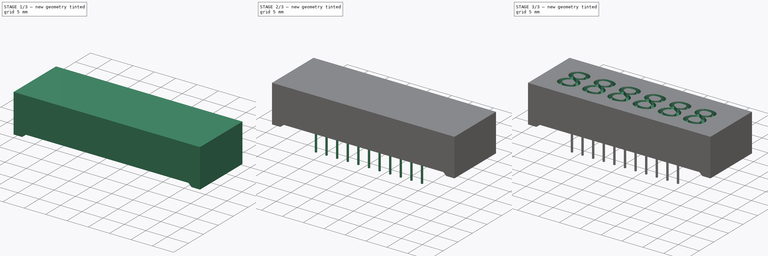
[diagram: build sequence overview — one tinted view per stage of 3, left to right]
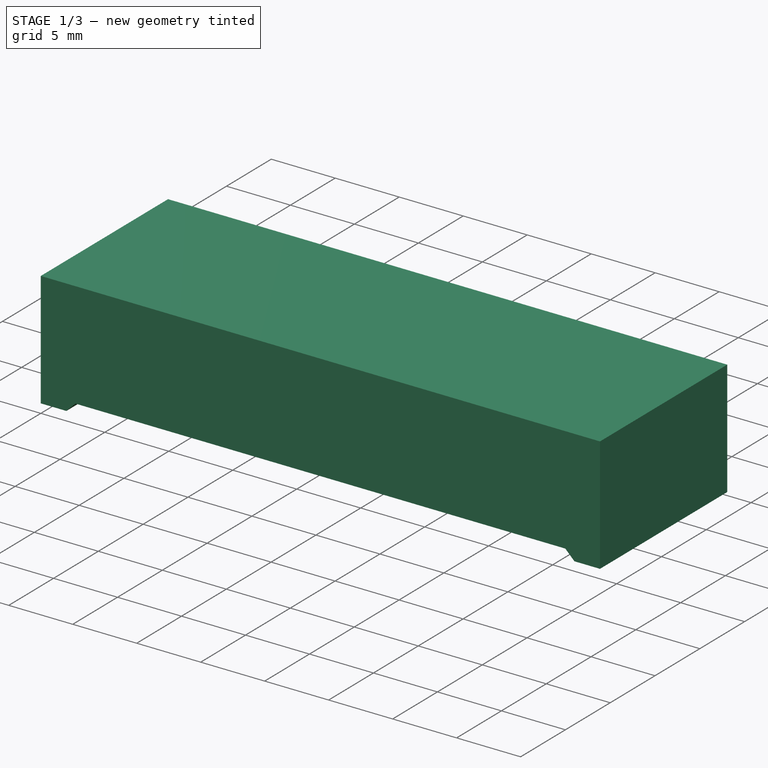
[diagram: stage 1 of 3 — iso view after this stage's code; geometry added in this stage tinted green]
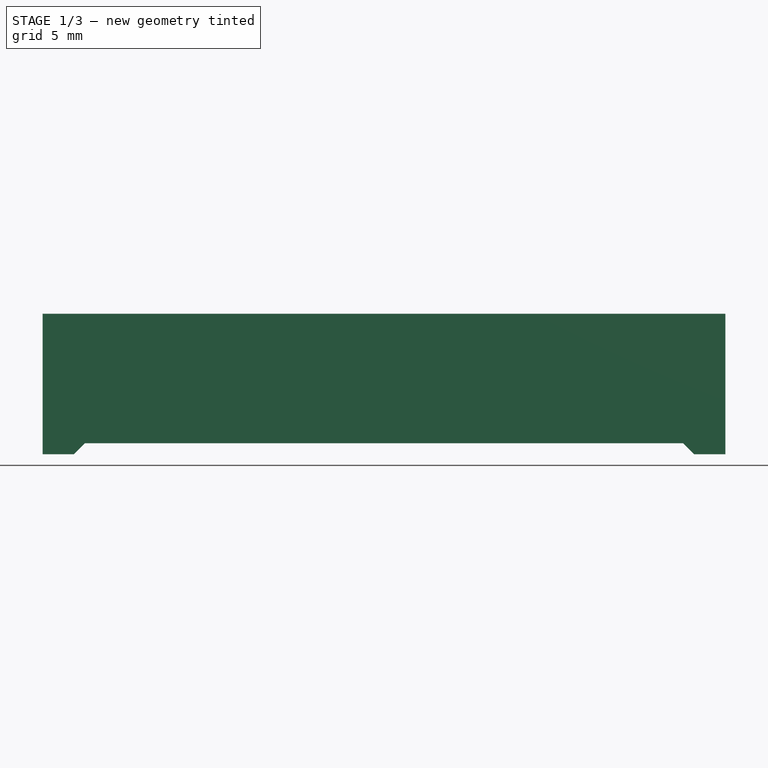
[diagram: stage 1 of 3 — front view after this stage's code; geometry added in this stage tinted green]
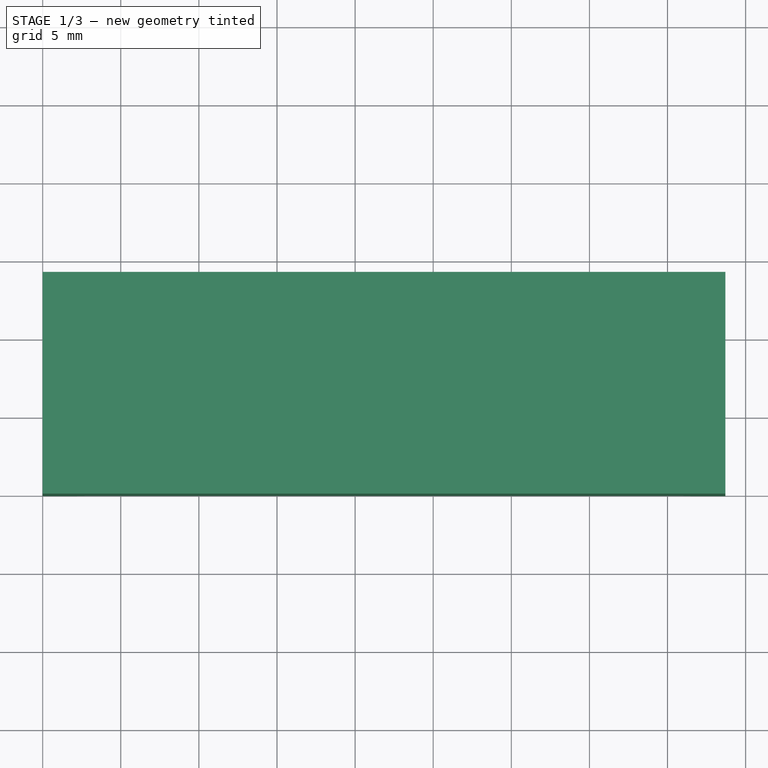
[diagram: stage 1 of 3 — top view after this stage's code; geometry added in this stage tinted green]
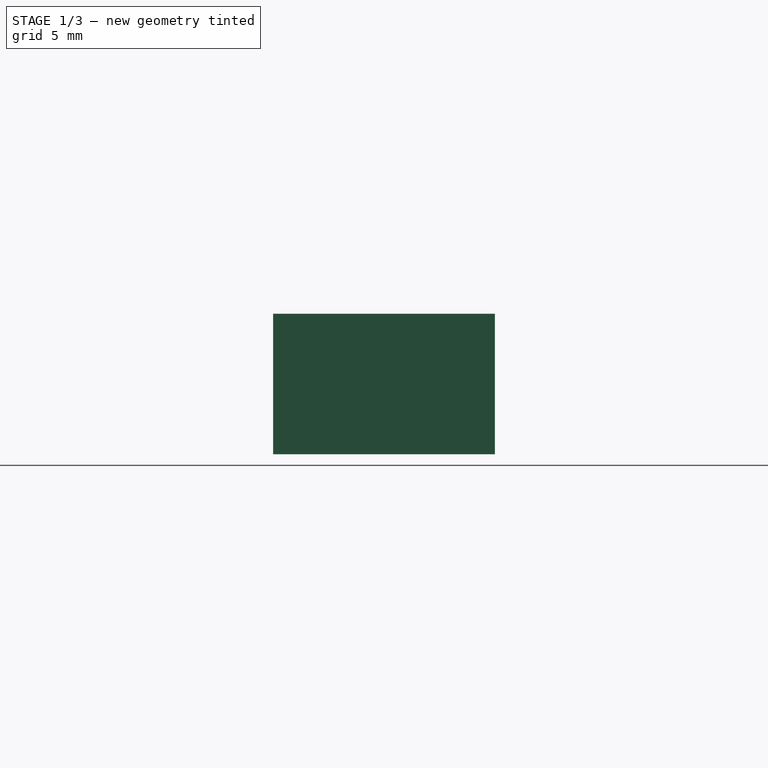
[diagram: stage 1 of 3 — right view after this stage's code; geometry added in this stage tinted green]
FCSTD DOCUMENT  (FreeCAD 1.0R39109 (Git))
Label: 7 Segment display
License: All rights reserved
LicenseURL: https://en.wikipedia.org/wiki/All_rights_reserved
objects: Sketcher::SketchObject×3, PartDesign::Pad×2, PartDesign::Pocket×2, PartDesign::Fillet×1, PartDesign::ShapeBinder×1, PartDesign::Body×1, Part::Part2DObjectPython×1
note: 24 computed .brp shape members not serialized (recipe doc carries the construction recipe); baked Part::Feature solids carry a one-line shape summary decoded from their .brp

FEATURE [Sketcher::SketchObject] Sketch
  ArcFitTolerance = 1e-06
  AttachmentSupport = -> [XY_Plane]
  FullyConstrained = true
  MakeInternals = false
  MapMode = 5
  sketch-geometry (4):
    g0: LineSegment StartX=0 StartY=0 StartZ=0 EndX=43.7 EndY=0 EndZ=0
    g1: LineSegment StartX=43.7 StartY=0 StartZ=0 EndX=43.7 EndY=14.2 EndZ=0
    g2: LineSegment StartX=43.7 StartY=14.2 StartZ=0 EndX=0 EndY=14.2 EndZ=0
    g3: LineSegment StartX=0 StartY=14.2 StartZ=0 EndX=0 EndY=0 EndZ=0
  constraints (11):
    c: Coincident(g0,g1)
    c: Coincident(g1,g2)
    c: Coincident(g2,g3)
    c: Coincident(g3,g0)
    c: Horizontal(g0)
    c: Horizontal(g2)
    c: Vertical(g1)
    c: Vertical(g3)
    c: Distance(g1,g3) = 43.7
    c: Distance(g0,g2) = 14.2
    c: Coincident(g0,g-1)
FEATURE [PartDesign::Pad] Pad
  Direction = (0,0,1)
  Length = 9
  Length2 = 10
  Profile = -> Sketch
  ReferenceAxis = -> Sketch [N_Axis]
  Refine = true
  Suppressed = false
  Type = 0
FEATURE [Sketcher::SketchObject] Sketch001
  ArcFitTolerance = 1e-06
  AttachmentSupport = -> [Pad]
  ExternalGeometry = -> [Pad]
  FullyConstrained = true
  MakeInternals = false
  MapMode = 5
  Placement = pos=(0,0,0) rot=(1,0,0;1.5708rad)
  sketch-geometry (4):
    g0: LineSegment StartX=2 StartY=0 StartZ=0 EndX=2.70711 EndY=0.707107 EndZ=0
    g1: LineSegment StartX=41.7 StartY=0 StartZ=0 EndX=40.9929 EndY=0.707107 EndZ=0
    g2: LineSegment StartX=2.70711 StartY=0.707107 StartZ=0 EndX=40.9929 EndY=0.707107 EndZ=0
    g3: LineSegment StartX=41.7 StartY=0 StartZ=0 EndX=2 EndY=0 EndZ=0
  constraints (12):
    c: Distance(g0) = 1
    c: Angle(g-1,g0) = 0.785398
    c: PointOnObject(g0,g-3)
    c: Distance(g1) = 1
    c: Angle(g-1,g1) = 2.35619
    c: PointOnObject(g1,g-3)
    c: Coincident(g2,g0)
    c: Coincident(g2,g1)
    c: Coincident(g3,g1)
    c: Coincident(g3,g0)
    c: DistanceX(g-1,g0) = 2
    c: DistanceX(g1,g-3) = 2
FEATURE [PartDesign::Pocket] Pocket
  BaseFeature = -> Pad
  Direction = (0,1,-2e-16)
  Length = 5
  Length2 = 5
  Profile = -> Sketch001
  ReferenceAxis = -> Sketch001 [N_Axis]
  Refine = true
  Suppressed = false
  Type = 1
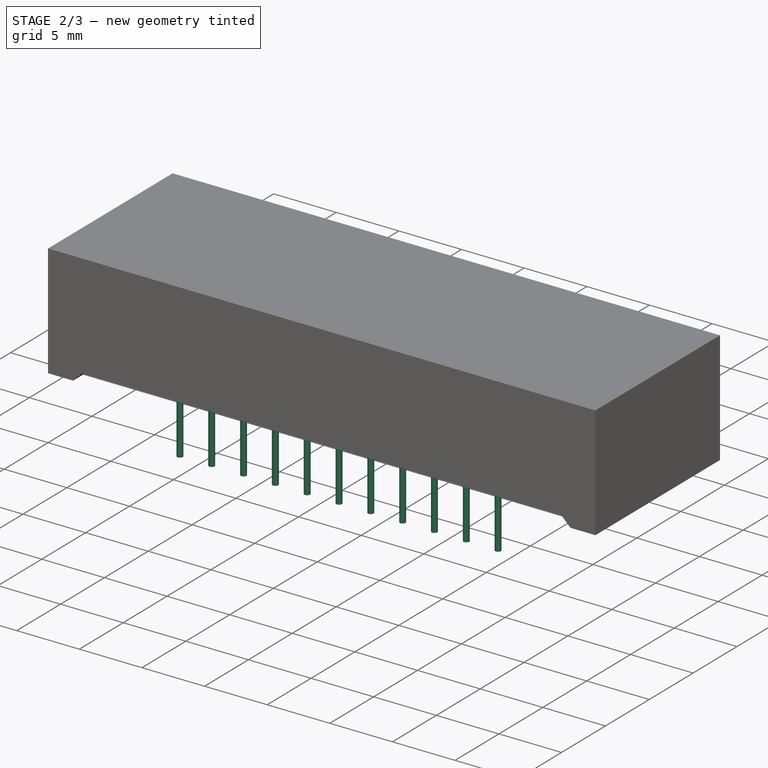
[diagram: stage 2 of 3 — iso view after this stage's code; geometry added in this stage tinted green]
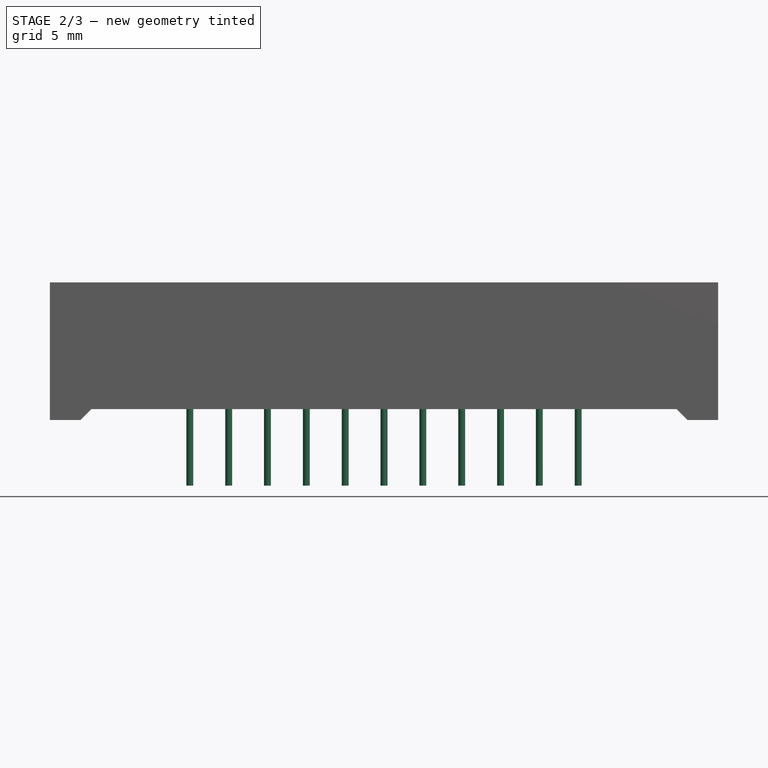
[diagram: stage 2 of 3 — front view after this stage's code; geometry added in this stage tinted green]
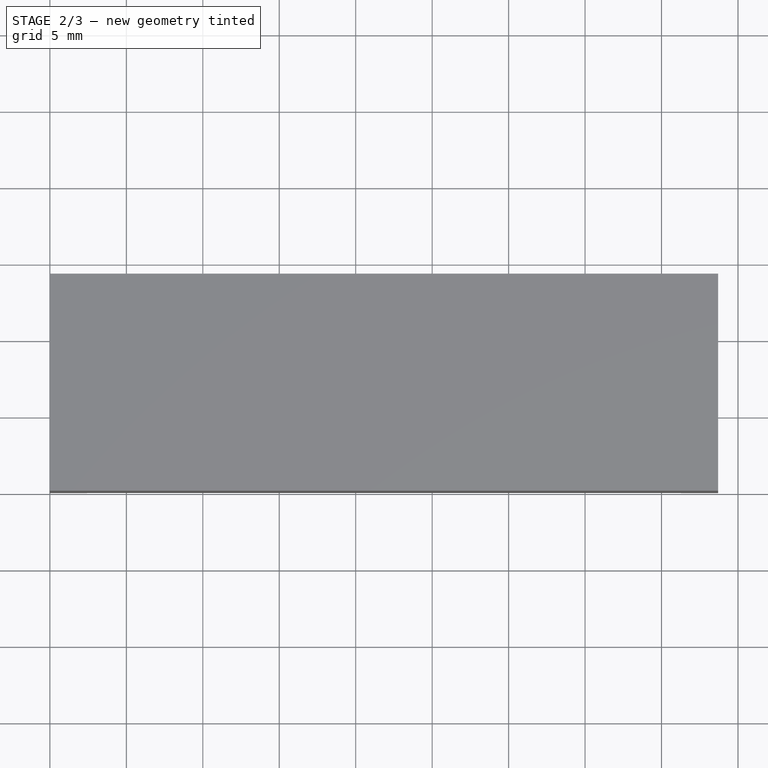
[diagram: stage 2 of 3 — top view after this stage's code; geometry added in this stage tinted green]
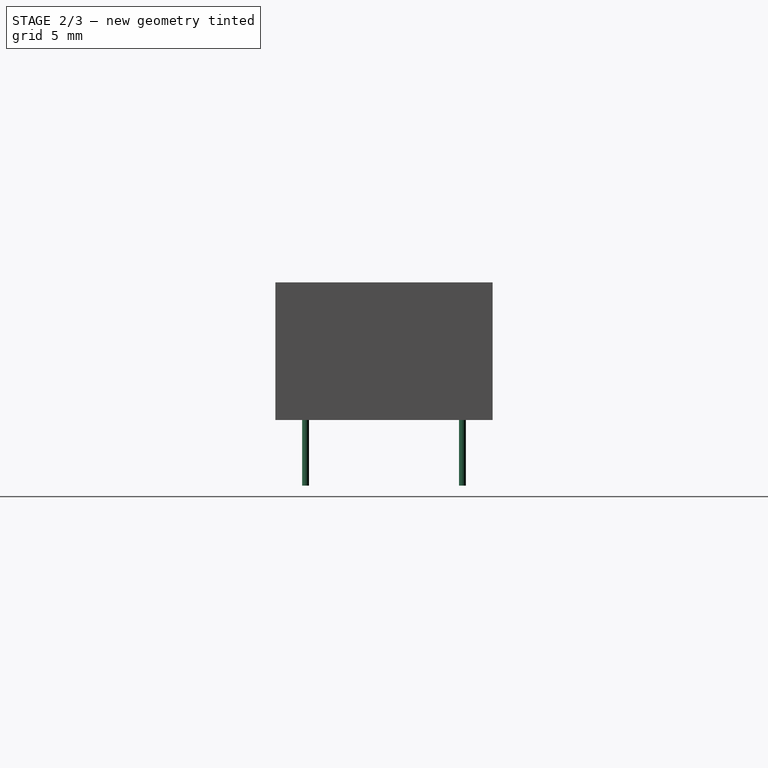
[diagram: stage 2 of 3 — right view after this stage's code; geometry added in this stage tinted green]
FEATURE [Sketcher::SketchObject] Sketch002
  ArcFitTolerance = 1e-06
  AttachmentSupport = -> [Pocket]
  ExternalGeometry = -> [Pocket]
  FullyConstrained = false
  MakeInternals = false
  MapMode = 5
  Placement = pos=(-8.53538e-09,2e-16,0.707107) rot=(1,0,0;3.14159rad)
  sketch-geometry (27):
    g0: LineSegment [constr] StartX=2.70711 StartY=-7.1 StartZ=0 EndX=40.9929 EndY=-7.1 EndZ=0
    g1: Circle CenterX=9.15 CenterY=-1.97 CenterZ=0 NormalX=0 NormalY=0 NormalZ=1 AngleXU=0 Radius=0.225
    g2: LineSegment [constr] StartX=21.85 StartY=2e-16 StartZ=0 EndX=21.85 EndY=-14.2 EndZ=0
    g3: Circle CenterX=11.69 CenterY=-1.97 CenterZ=0 NormalX=0 NormalY=0 NormalZ=1 AngleXU=0 Radius=0.225
    g4: Circle CenterX=14.23 CenterY=-1.97 CenterZ=0 NormalX=0 NormalY=0 NormalZ=1 AngleXU=0 Radius=0.225
    g5: Circle CenterX=16.77 CenterY=-1.97 CenterZ=0 NormalX=0 NormalY=0 NormalZ=1 AngleXU=0 Radius=0.225
    g6: Circle CenterX=19.31 CenterY=-1.97 CenterZ=0 NormalX=0 NormalY=0 NormalZ=1 AngleXU=0 Radius=0.225
    g7: Circle CenterX=21.85 CenterY=-1.97 CenterZ=0 NormalX=0 NormalY=0 NormalZ=1 AngleXU=0 Radius=0.225
    g8: Circle CenterX=24.39 CenterY=-1.97 CenterZ=0 NormalX=0 NormalY=0 NormalZ=1 AngleXU=0 Radius=0.225
    g9: LineSegment [constr] StartX=21.85 StartY=-14.2 StartZ=0 EndX=21.85 EndY=3.6e-15 EndZ=0
    g10: Circle CenterX=26.93 CenterY=-1.97 CenterZ=0 NormalX=0 NormalY=0 NormalZ=1 AngleXU=0 Radius=0.225
    g11: Circle CenterX=29.47 CenterY=-1.97 CenterZ=0 NormalX=0 NormalY=0 NormalZ=1 AngleXU=0 Radius=0.225
    g12: Circle CenterX=32.01 CenterY=-1.97 CenterZ=0 NormalX=0 NormalY=0 NormalZ=1 AngleXU=0 Radius=0.225
    g13: Circle CenterX=34.55 CenterY=-1.97 CenterZ=0 NormalX=0 NormalY=0 NormalZ=1 AngleXU=0 Radius=0.225
    g14: Circle CenterX=9.15 CenterY=-12.23 CenterZ=0 NormalX=0 NormalY=0 NormalZ=1 AngleXU=0 Radius=0.225
    g15: LineSegment [constr] StartX=21.85 StartY=-14.2 StartZ=0 EndX=21.85 EndY=3.6e-15 EndZ=0
    g16: Circle CenterX=11.69 CenterY=-12.23 CenterZ=0 NormalX=0 NormalY=0 NormalZ=1 AngleXU=0 Radius=0.225
    g17: Circle CenterX=14.23 CenterY=-12.23 CenterZ=0 NormalX=0 NormalY=0 NormalZ=1 AngleXU=0 Radius=0.225
    g18: Circle CenterX=16.77 CenterY=-12.23 CenterZ=0 NormalX=0 NormalY=0 NormalZ=1 AngleXU=0 Radius=0.225
    g19: Circle CenterX=19.31 CenterY=-12.23 CenterZ=0 NormalX=0 NormalY=0 NormalZ=1 AngleXU=0 Radius=0.225
    g20: Circle CenterX=21.85 CenterY=-12.23 CenterZ=0 NormalX=0 NormalY=0 NormalZ=1 AngleXU=0 Radius=0.225
    g21: Circle CenterX=24.39 CenterY=-12.23 CenterZ=0 NormalX=0 NormalY=0 NormalZ=1 AngleXU=0 Radius=0.225
    g22: LineSegment [constr] StartX=21.85 StartY=0 StartZ=0 EndX=21.85 EndY=-14.2 EndZ=0
    g23: Circle CenterX=26.93 CenterY=-12.23 CenterZ=0 NormalX=0 NormalY=0 NormalZ=1 AngleXU=0 Radius=0.225
    g24: Circle CenterX=29.47 CenterY=-12.23 CenterZ=0 NormalX=0 NormalY=0 NormalZ=1 AngleXU=0 Radius=0.225
    g25: Circle CenterX=32.01 CenterY=-12.23 CenterZ=0 NormalX=0 NormalY=0 NormalZ=1 AngleXU=0 Radius=0.225
    g26: Circle CenterX=34.55 CenterY=-12.23 CenterZ=0 NormalX=0 NormalY=0 NormalZ=1 AngleXU=0 Radius=0.225
  constraints (58):
    c: Symmetric(g-4,g-4,g0)
    c: Symmetric(g-5,g-5,g0)
    c: Diameter(g1) = 0.45
    c: Distance(g1,g0) = 5.13
    c: Symmetric(g-3,g-3,g2)
    c: Symmetric(g-6,g-6,g2)
    c: Equal(g1, g3-g8) x6
    c: DistanceX(g1,g3) = 2.54
    c: DistanceX(g3,g4) = 2.54
    c: DistanceX(g4,g5) = 2.54
    c: DistanceX(g5,g6) = 2.54
    c: DistanceX(g6,g7) = 2.54
    c: DistanceX(g7,g8) = 2.54
    c: Horizontal(g8,g7)
    c: Horizontal(g7,g6)
    c: Horizontal(g6,g5)
    c: Horizontal(g5,g4)
    c: Horizontal(g4,g3)
    c: Horizontal(g3,g1)
    c: Equal(g10,g8)
    c: Horizontal(g10,g8)
    c: DistanceX(g8,g10) = 2.54
    c: Equal(g11,g12)
    c: Equal(g12,g13)
    c: Equal(g13,g10)
    c: Horizontal(g11,g12)
    c: Horizontal(g12,g13)
    c: DistanceX(g10,g11) = 2.54
    c: DistanceX(g11,g12) = 2.54
    c: DistanceX(g12,g13) = 2.54
    c: PointOnObject(g7,g2)
    c: Equal(g1,g14)
    c: Symmetric(g1,g14,g0)
    c: Symmetric(g2,g15,g0)
    c: Symmetric(g2,g15,g0)
    c: Equal(g3,g16)
    c: Symmetric(g3,g16,g0)
    c: Equal(g4,g17)
    c: Symmetric(g4,g17,g0)
    c: Equal(g5,g18)
    c: Symmetric(g5,g18,g0)
    c: Equal(g6,g19)
    c: Symmetric(g6,g19,g0)
    c: Equal(g7,g20)
    c: Symmetric(g7,g20,g0)
    c: Equal(g8,g21)
    c: Symmetric(g8,g21,g0)
    c: Symmetric(g9,g22,g0)
    c: Symmetric(g9,g22,g0)
    c: Equal(g10,g23)
    c: Symmetric(g10,g23,g0)
    c: Equal(g11,g24)
    c: Symmetric(g11,g24,g0)
    c: Equal(g12,g25)
    c: Symmetric(g12,g25,g0)
    c: Equal(g13,g26)
    c: Symmetric(g13,g26,g0)
    c: Horizontal(g11,g10)
FEATURE [PartDesign::Pad] Pad001
  BaseFeature = -> Pocket
  Direction = (1.20709e-08,0,-1)
  Length = 5
  Length2 = 10
  Profile = -> Sketch002
  ReferenceAxis = -> Sketch002 [N_Axis]
  Refine = true
  Suppressed = false
  Type = 0
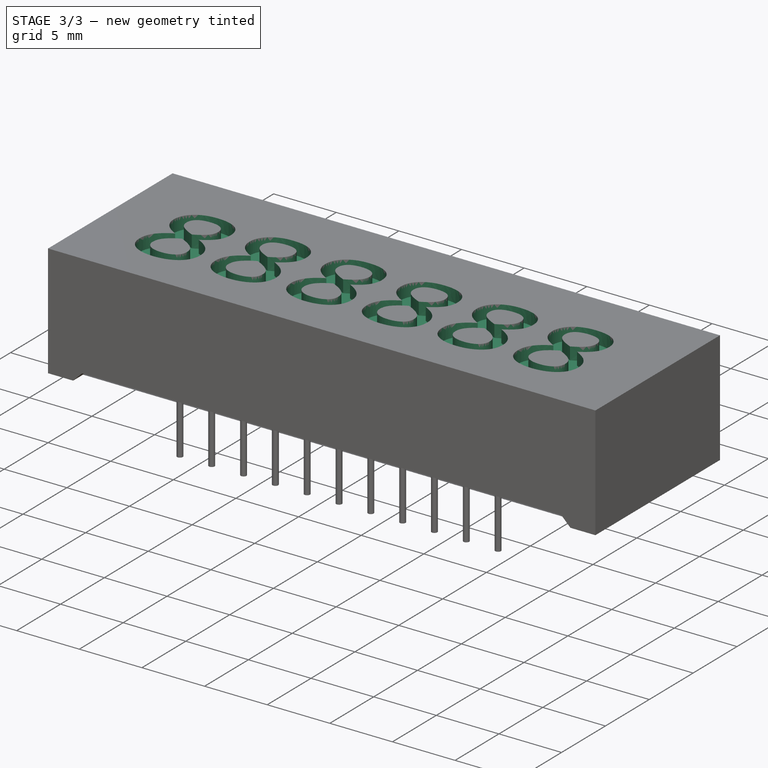
[diagram: stage 3 of 3 — iso view after this stage's code; geometry added in this stage tinted green]
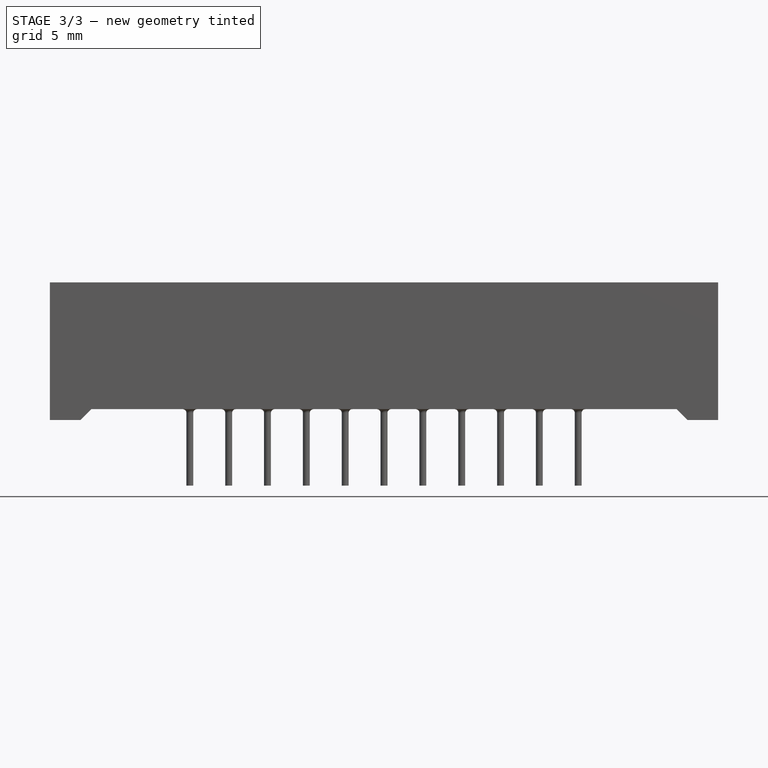
[diagram: stage 3 of 3 — front view after this stage's code; geometry added in this stage tinted green]
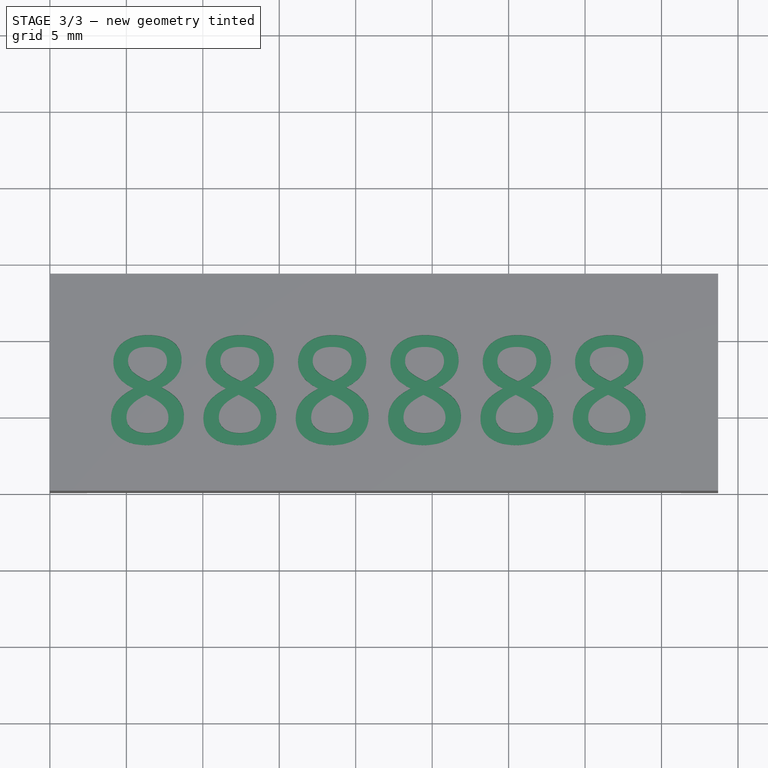
[diagram: stage 3 of 3 — top view after this stage's code; geometry added in this stage tinted green]
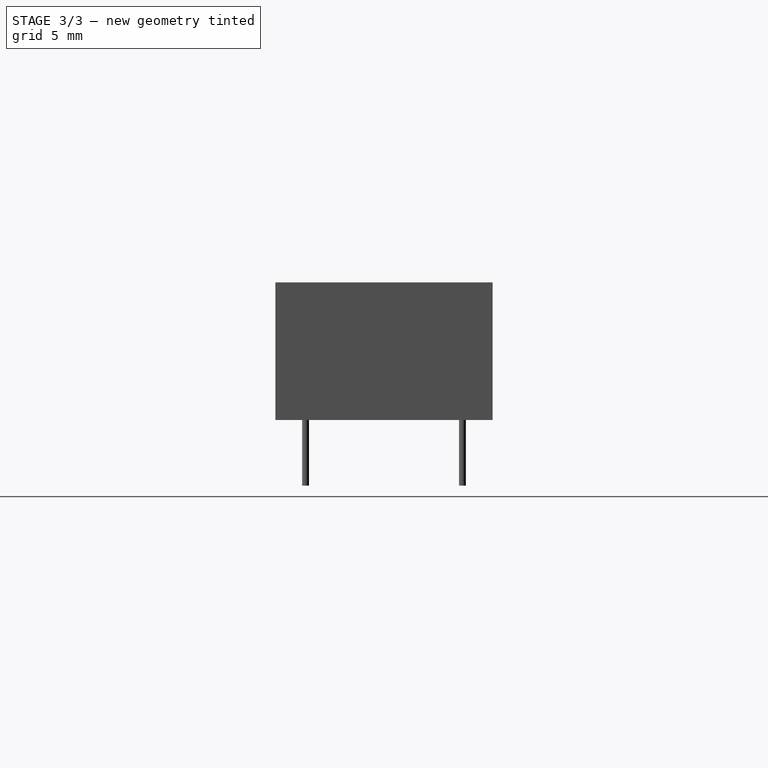
[diagram: stage 3 of 3 — right view after this stage's code; geometry added in this stage tinted green]
FEATURE [PartDesign::Fillet] Fillet
  Base = -> Pad001 [Edge37,Edge36,Edge35,Edge34,Edge33,Edge32,Edge31,Edge30,Edge29,Edge28,Edge27,Edge16,Edge17,Edge18,Edge19,Edge20,Edge21,Edge22,Edge23,Edge24,Edge25,Edge26]
  BaseFeature = -> Pad001
  Radius = 0.25
  Refine = true
  SupportTransform = false
  Suppressed = false
  UseAllEdges = false
FEATURE [PartDesign::ShapeBinder] CopyShapeString
  Placement = pos=(4,3.07,9) rot=(0,0,1;0rad)
  TraceSupport = false
FEATURE [PartDesign::Pocket] Pocket001
  BaseFeature = -> Fillet
  Direction = (0,0,-1)
  Length = 1
  Length2 = 5
  Profile = -> CopyShapeString
  Refine = true
  Suppressed = false
  Type = 0
FEATURE [PartDesign::Body] Body
  AllowCompound = false
  Group = -> [Sketch,Pad,Sketch001,Pocket,Sketch002,Pad001,Fillet,CopyShapeString,Pocket001]
  Origin = -> Origin
  Tip = -> Pocket001
FEATURE [Part::Part2DObjectPython] ShapeString  # Draft 2D object (typed FeaturePython)
  FontFile = <path>
  Fuse = false
  Justification = 6
  JustificationReference = 0
  KeepLeftMargin = false
  MakeFace = true
  ObliqueAngle = 0
  Placement = pos=(4,3.07,9) rot=(0,0,1;0rad)
  ScaleToSize = true
  Size = 7
  String = 888888
  Tracking = 0
note: 1 file-system path scrubbed to <path> (originals preserved in the JSON sidecar)
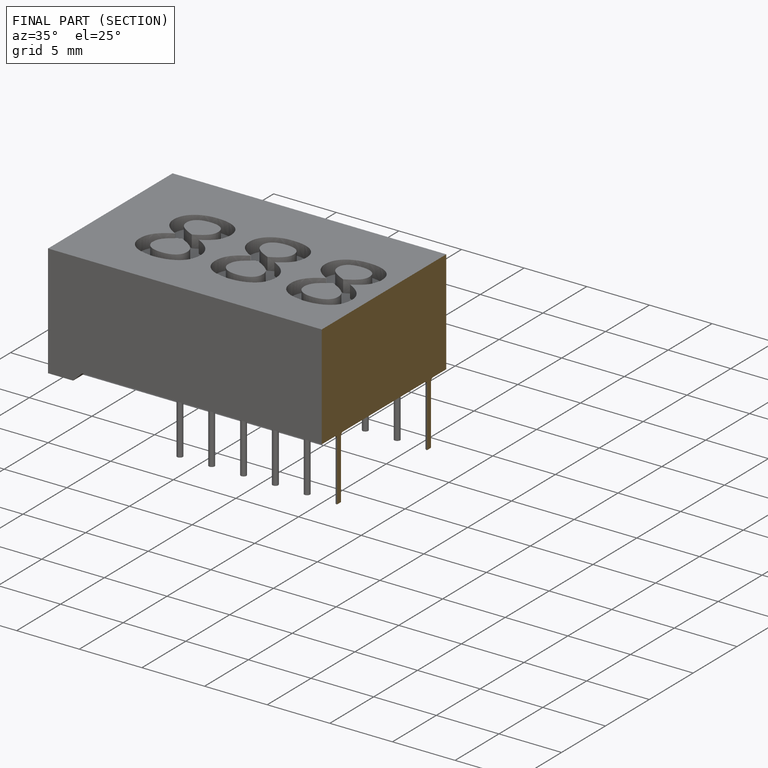
[diagram: finished part — half-section view (interior)]
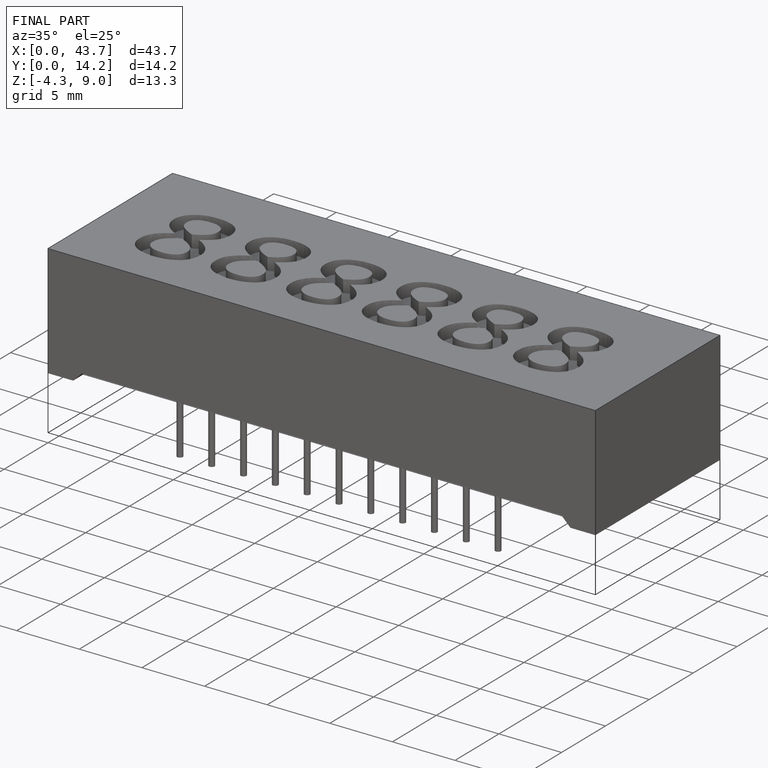
[diagram: finished part — iso view with bounding-box wireframe]
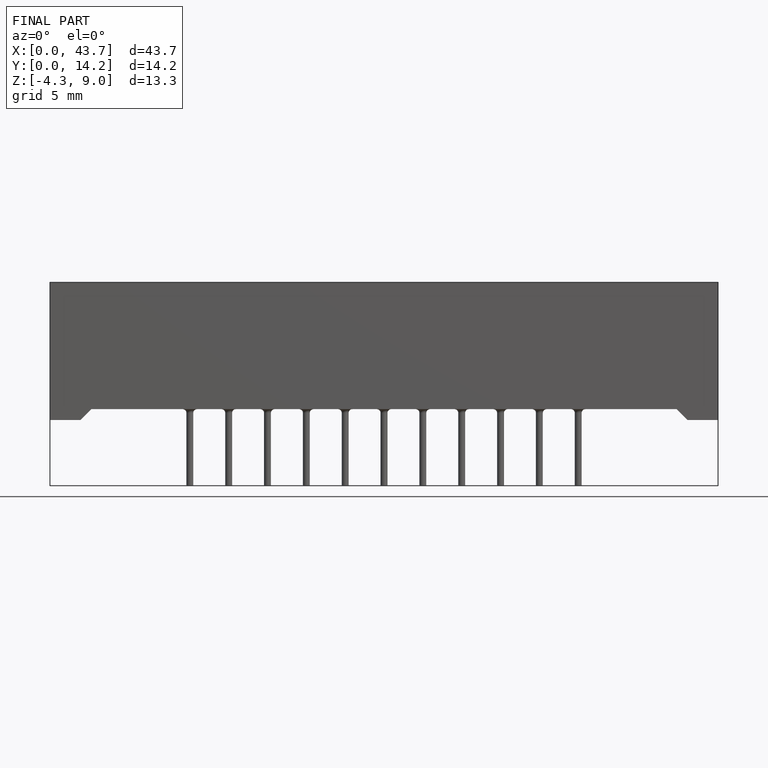
[diagram: finished part — front view with bounding-box wireframe]
